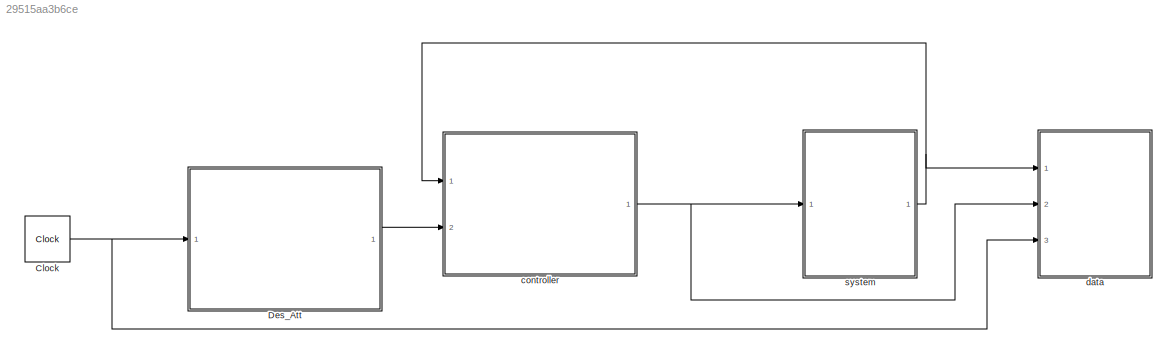
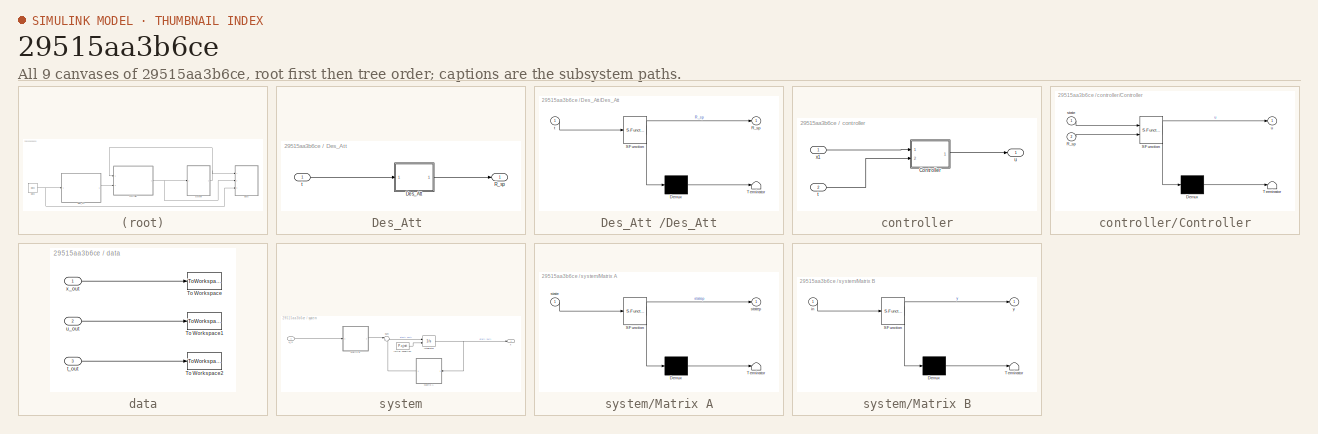
[diagram: thumbnail index - all 9 canvases of the model, root first then tree order]
MODEL slx_29515aa3b6ce
KIND model
CONFIG AbsTol = auto
CONFIG FixedStep = auto
CONFIG InitFcn = RotSimu_initialization
CONFIG MaxStep = auto
CONFIG MinStep = auto
CONFIG RelTol = 1e-3
CONFIG SampleTimeConstraint = Unconstrained
CONFIG Solver = ode45
CONFIG SolverMode = Auto
CONFIG SolverName = ode45
CONFIG StartTime = 0.0
CONFIG StopFcn = RotSimu_postprocessing
CONFIG StopTime = 15
BLOCK [Clock] Clock
  Decimation = 1
  DisplayTime = on
BLOCK [SubSystem] Des_Att 
  Ports = [1, 1]
  RequestExecContextInheritance = off
  Variant = off
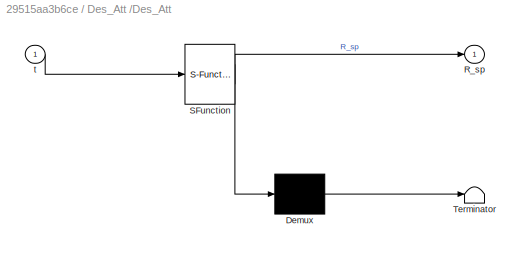
BLOCK [SubSystem] Des_Att /Des_Att
  ErrorFcn = Stateflow.Translate.translate
  PermitHierarchicalResolution = ExplicitOnly
  Ports = [1, 1]
  RequestExecContextInheritance = off
  SFBlockType = MATLAB Function
  TreatAsAtomicUnit = on
  Variant = off
BLOCK [Demux] Des_Att /Des_Att/ Demux 
  Outputs = 1
  Ports = [1, 1]
BLOCK [S-Function] Des_Att /Des_Att/ SFunction 
  EnableBusSupport = on
  FunctionName = sf_sfun
  Parameters = P
  PortCounts = [1 2]
  Ports = [1, 2]
  SFunctionDeploymentMode = off
  Tag = Stateflow S-Function RotationSimulation 1
BLOCK [Terminator] Des_Att /Des_Att/ Terminator 
BLOCK [Outport] Des_Att /Des_Att/R_sp
  IconDisplay = Port number
BLOCK [Inport] Des_Att /Des_Att/t
  IconDisplay = Port number
BLOCK [Outport] Des_Att /R_sp
  IconDisplay = Port number
BLOCK [Inport] Des_Att /t
  IconDisplay = Port number
BLOCK [SubSystem] controller
  Ports = [2, 1]
  RequestExecContextInheritance = off
  Variant = off
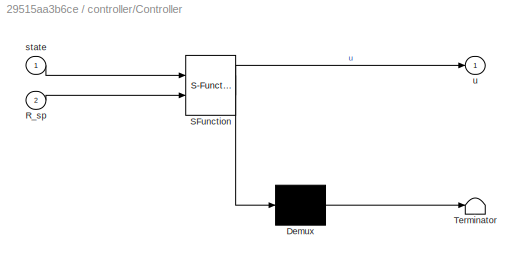
BLOCK [SubSystem] controller/Controller
  ErrorFcn = Stateflow.Translate.translate
  PermitHierarchicalResolution = ExplicitOnly
  Ports = [2, 1]
  RequestExecContextInheritance = off
  SFBlockType = MATLAB Function
  TreatAsAtomicUnit = on
  Variant = off
BLOCK [Demux] controller/Controller/ Demux 
  Outputs = 1
  Ports = [1, 1]
BLOCK [S-Function] controller/Controller/ SFunction 
  EnableBusSupport = on
  FunctionName = sf_sfun
  Parameters = P
  PortCounts = [2 2]
  Ports = [2, 2]
  SFunctionDeploymentMode = off
  Tag = Stateflow S-Function RotationSimulation 2
BLOCK [Terminator] controller/Controller/ Terminator 
BLOCK [Inport] controller/Controller/R_sp
  IconDisplay = Port number
  Port = 2
BLOCK [Inport] controller/Controller/state
  IconDisplay = Port number
BLOCK [Outport] controller/Controller/u
  IconDisplay = Port number
BLOCK [Inport] controller/t
  IconDisplay = Port number
  Port = 2
BLOCK [Outport] controller/u
  IconDisplay = Port number
BLOCK [Inport] controller/x1
  IconDisplay = Port number
BLOCK [SubSystem] data
  Ports = [3]
  RequestExecContextInheritance = off
  Variant = off
BLOCK [ToWorkspace] data/To Workspace
  MaxDataPoints = inf
  Ports = [1]
  SampleTime = -1
  VariableName = x_out
BLOCK [ToWorkspace] data/To Workspace1
  MaxDataPoints = inf
  Ports = [1]
  SampleTime = -1
  VariableName = u_out
BLOCK [ToWorkspace] data/To Workspace2
  MaxDataPoints = inf
  Ports = [1]
  SampleTime = -1
  VariableName = t_out
BLOCK [Inport] data/t_out
  IconDisplay = Port number
  Port = 3
BLOCK [Inport] data/u_out
  IconDisplay = Port number
  Port = 2
BLOCK [Inport] data/x_out
  IconDisplay = Port number
BLOCK [SubSystem] system
  Ports = [1, 1]
  RequestExecContextInheritance = off
  Variant = off
BLOCK [Integrator] system/Integrator
  InitialCondition = initial_state
  InitialConditionSource = external
  Ports = [2, 1]
BLOCK [SubSystem] system/Matrix A
  ErrorFcn = Stateflow.Translate.translate
  PermitHierarchicalResolution = ExplicitOnly
  Ports = [1, 1]
  RequestExecContextInheritance = off
  SFBlockType = MATLAB Function
  TreatAsAtomicUnit = on
  Variant = off
BLOCK [Demux] system/Matrix A/ Demux 
  Outputs = 1
  Ports = [1, 1]
BLOCK [S-Function] system/Matrix A/ SFunction 
  EnableBusSupport = on
  FunctionName = sf_sfun
  Parameters = P
  PortCounts = [1 2]
  Ports = [1, 2]
  SFunctionDeploymentMode = off
  Tag = Stateflow S-Function RotationSimulation 10
BLOCK [Terminator] system/Matrix A/ Terminator 
BLOCK [Inport] system/Matrix A/state
  IconDisplay = Port number
BLOCK [Outport] system/Matrix A/statep
  IconDisplay = Port number
BLOCK [SubSystem] system/Matrix B
  ErrorFcn = Stateflow.Translate.translate
  PermitHierarchicalResolution = ExplicitOnly
  Ports = [1, 1]
  RequestExecContextInheritance = off
  SFBlockType = MATLAB Function
  TreatAsAtomicUnit = on
  Variant = off
BLOCK [Demux] system/Matrix B/ Demux 
  Outputs = 1
  Ports = [1, 1]
BLOCK [S-Function] system/Matrix B/ SFunction 
  EnableBusSupport = on
  FunctionName = sf_sfun
  Parameters = P
  PortCounts = [1 2]
  Ports = [1, 2]
  SFunctionDeploymentMode = off
  Tag = Stateflow S-Function RotationSimulation 11
BLOCK [Terminator] system/Matrix B/ Terminator 
BLOCK [Inport] system/Matrix B/in
  IconDisplay = Port number
BLOCK [Outport] system/Matrix B/y
  IconDisplay = Port number
BLOCK [Sum] system/Sum
  IconShape = round
  InputSameDT = off
  Inputs = |++
  OutDataTypeStr = Inherit: Inherit via internal rule
  Ports = [2, 1]
  SaturateOnIntegerOverflow = off
BLOCK [Constant] system/initial condition
  Value = P.x_init
BLOCK [Inport] system/u_in
  IconDisplay = Port number
BLOCK [Outport] system/x
  IconDisplay = Port number
NET Clock:1 -> Des_Att :1, data:3
LINE Des_Att /Des_Att:1 -> Des_Att /R_sp:1
LINE Des_Att /t:1 -> Des_Att /Des_Att:1
LINE Des_Att :1 -> controller:2
LINE controller/Controller:1 -> controller/u:1
LINE controller/t:1 -> controller/Controller:2
LINE controller/x1:1 -> controller/Controller:1
NET controller:1 -> data:2, system:1
LINE data/t_out:1 -> data/To Workspace2:1
LINE data/u_out:1 -> data/To Workspace1:1
LINE data/x_out:1 -> data/To Workspace:1
NET system/Integrator:1 -> system/Matrix A:1, system/x:1
LINE system/Matrix A:1 -> system/Sum:2
LINE system/Matrix B:1 -> system/Sum:1
LINE system/Sum:1 -> system/Integrator:1
LINE system/initial condition:1 -> system/Integrator:2
LINE system/u_in:1 -> system/Matrix B:1
NET system:1 -> controller:1, data:1
note: NET lines group one-source signal fan-out (src -> all destinations, sorted); 1:1 wires keep LINE
CHART Des_Att
/Des_Att states=1 transitions=1
  STATE_LABEL 'eML_blk_kernel()'
  STATE_LABEL 'SCRIPT:\nfunction R_sp = Des_Att(t,P)\n%#codegen\nphi = 0;\ntheta = 0;\npsi = 0.3 * sin( 2*pi*t/3);\n\n% Z-Y-X Euler angles to Rotation Matrx\nR_sp = [cos(psi)*cos(theta),\t(cos(psi)*sin(theta)*sin(phi) - sin(psi)*cos(phi)),\t(sin(psi)*sin(phi)+cos(psi)*cos(phi)*sin(theta));\n    sin(psi)*cos(theta),\t(cos(phi)*cos(psi) + sin(phi)*sin(theta)*sin(psi)),\tcos(phi)*sin(theta)*sin(psi)-cos(psi)*sin(phi); \n        ...<+119ch>'
CHART controller/Controller states=1 transitions=1
  STATE_LABEL 'eML_blk_kernel()'
  STATE_LABEL 'SCRIPT:\nfunction u = Controller(state,R_sp,P)\n%#codege\nphi = state(1);\ntheta = state(2);\npsi = state(3);\nomega = [state(4); state(5); state(6)];\n\n%inertia Tensor\nJ = diag([P.I_x, P.I_y, P.I_z]);\n\n% Z-Y-X Euler angles to Rotation Matrx\nR = [cos(psi)*cos(theta),\t(cos(psi)*sin(theta)*sin(phi) - sin(psi)*cos(phi)),\t(sin(psi)*sin(phi)+cos(psi)*cos(phi)*sin(theta));\n    sin(psi)*cos(theta),\t(cos(phi)*co...<+444ch>'
CHART system/Matrix A states=1 transitions=1
  STATE_LABEL 'eML_blk_kernel()'
  STATE_LABEL "SCRIPT:\nfunction statep = fcn(state, P) %state = [eta, nu]' =[phi,theta,psi,p,q,r]'\n\nphi = state(1);\ntheta = state(2);\npsi = state(3);\np = state(4);\nq = state(5);\nr = state(6);\n\n%rigid body mass matrix M_RB\nM_RB = [ P.I_x,      -P.I_xy,    -P.I_xz;  \n         -P.I_xy,    P.I_y,      P.I_yz;\n         -P.I_xz,    -P.I_yz,    P.I_z];\n   \n   \n   \n% hydrodynamic added mass matrix M_A\n%added mass matrix...<+964ch>"
CHART system/Matrix B states=1 transitions=1
  STATE_LABEL 'eML_blk_kernel()'
  STATE_LABEL 'SCRIPT:\nfunction y = fcn(in, P)    %in = [p q r]\n\n%rigid body mass matrix M_RB\nM_RB = [ P.I_x,      -P.I_xy,    -P.I_xz;  \n         -P.I_xy,    P.I_y,      P.I_yz;\n         -P.I_xz,    -P.I_yz,    P.I_z];\n   \n   \n% hydrodynamic added mass matrix M_A\n%added mass matrix\nM_A = [ P.K_pdot,   0,          0;\n        0,          P.M_qdot,   0;\n        0,          0,          P.N_rdot];\n     \n     \n%matri...<+82ch>'
